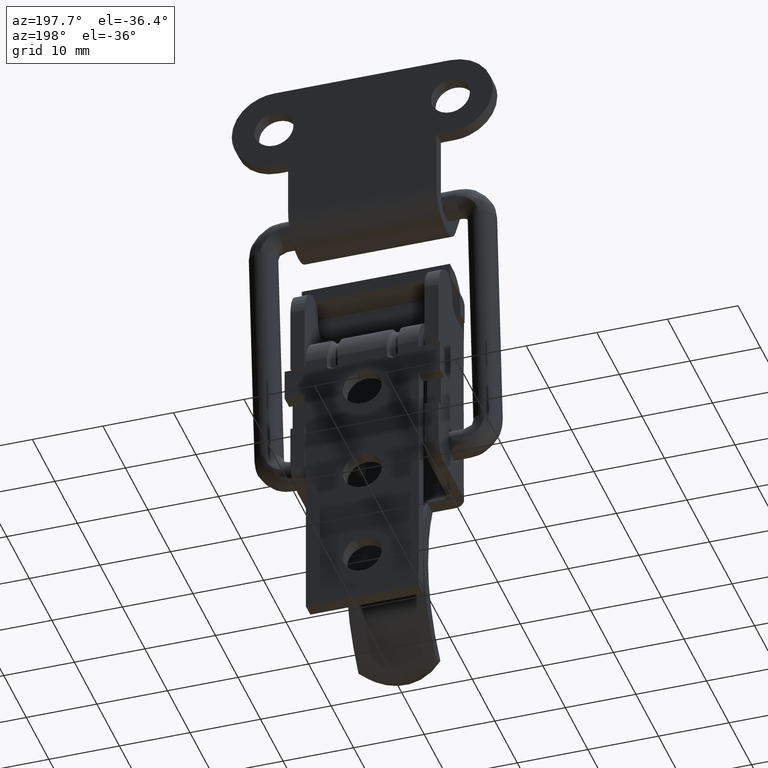
[diagram: clean part render]
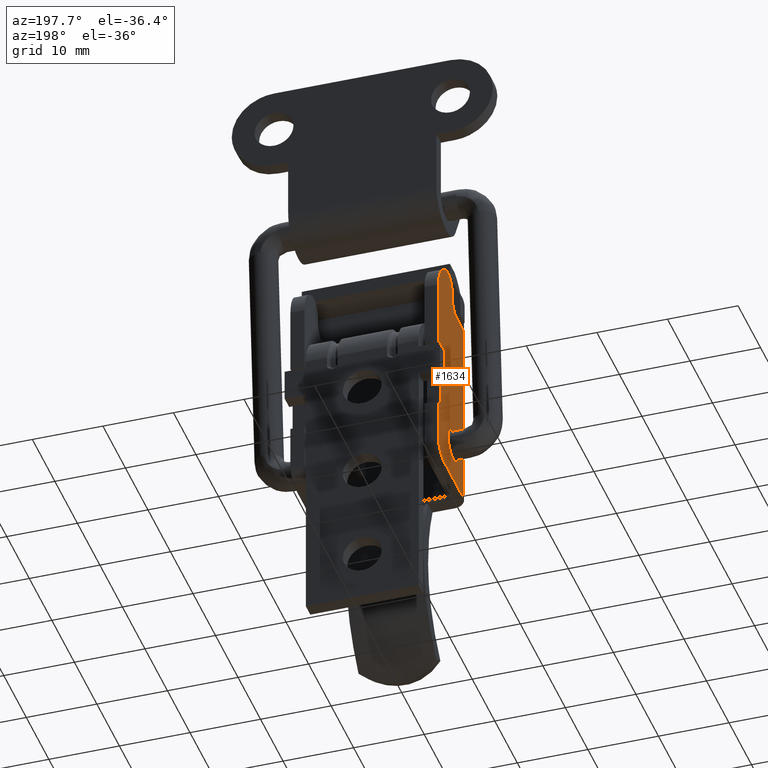
[diagram: same view with one face highlighted and labeled with its STEP entity id]
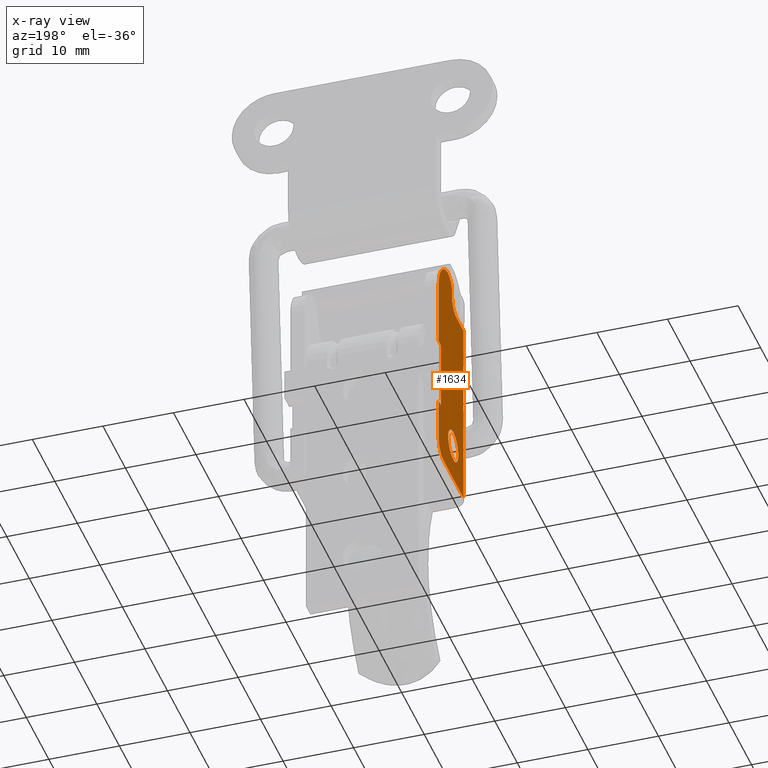
[diagram: x-ray of the same camera — body ghosted, the highlighted face saturated]
A machine part, auxiliary view. The second image highlights one B-rep face of the part: STEP entity #1634.
The next image is the same camera in x-ray: the body ghosted, the highlighted face saturated — about 0% of this face is hidden behind the body in this view.
In plain terms, the highlighted face is a freeform B-spline surface patch.
Its self-contained STEP definition (entity closure, byte-faithful):
#286=CARTESIAN_POINT('',(-10.500000000000000,-1.612464491416457,1.569221722156929));
#287=VERTEX_POINT('',#286);
#293=CARTESIAN_POINT('',(-10.500000000000000,0.0,2.250000000000000));
#294=VERTEX_POINT('',#293);
#295=CARTESIAN_POINT('',(-10.500000000000000,0.0,2.250000000000000));
#296=CARTESIAN_POINT('',(-10.499999999999989,-0.280943443741271,2.250276005783192));
#297=CARTESIAN_POINT('',(-10.500000000000041,-0.711434398399888,2.168244970531480));
#298=CARTESIAN_POINT('',(-10.499999999999959,-1.247147370743055,1.893063053322935));
#299=CARTESIAN_POINT('',(-10.500000000000020,-1.494942574765225,1.690029035212102));
#300=CARTESIAN_POINT('',(-10.500000000000000,-1.612464491416457,1.569221722156929));
#301=B_SPLINE_CURVE_WITH_KNOTS('',3,(#295,#296,#297,#298,#299,#300),.UNSPECIFIED.,.F.,.U.,(4,1,1,4),(0.000000014728185,0.842705320751062,1.292147612697767,1.797770625848777),.UNSPECIFIED.);
#302=EDGE_CURVE('',#294,#287,#301,.T.);
#304=CARTESIAN_POINT('',(-10.500000000000000,2.249999999999630,0.000001289926931));
#305=VERTEX_POINT('',#304);
#306=CARTESIAN_POINT('',(-10.500000000000000,2.249999999999630,0.000001289926931));
#307=CARTESIAN_POINT('',(-10.499999999999980,2.250128070219974,0.239321053924271));
#308=CARTESIAN_POINT('',(-10.500000000000011,2.193666916498253,0.588977730257543));
#309=CARTESIAN_POINT('',(-10.500000000000000,2.002904179086378,1.049399304943656));
#310=CARTESIAN_POINT('',(-10.500000000000011,1.775330380016229,1.408833048698913));
#311=CARTESIAN_POINT('',(-10.500000000000000,1.477843106253047,1.713698093594289));
#312=CARTESIAN_POINT('',(-10.500000000000000,1.130743468988455,1.958130530718445));
#313=CARTESIAN_POINT('',(-10.500000000000000,0.662577442743116,2.179636328253865));
#314=CARTESIAN_POINT('',(-10.500000000000000,0.257735403127001,2.250180356770545));
#315=CARTESIAN_POINT('',(-10.500000000000000,0.0,2.250000000000000));
#316=B_SPLINE_CURVE_WITH_KNOTS('',3,(#306,#307,#308,#309,#310,#311,#312,#313,#314,#315),.UNSPECIFIED.,.F.,.U.,(4,1,1,1,1,1,1,4),(0.000000034135996,0.717915547896062,1.049274105069932,1.491068358867785,1.988082434435846,2.319426126895500,2.761238766972024,3.534379697710593),.UNSPECIFIED.);
#317=EDGE_CURVE('',#305,#294,#316,.T.);
#319=CARTESIAN_POINT('',(-10.500000000000000,0.0,-2.250000000000000));
#320=VERTEX_POINT('',#319);
#321=CARTESIAN_POINT('',(-10.500000000000000,0.0,-2.250000000000000));
#322=CARTESIAN_POINT('',(-10.500000000000000,0.202491028136849,-2.250070875422188));
#323=CARTESIAN_POINT('',(-10.499999999999989,0.552190512302151,-2.202440575577275));
#324=CARTESIAN_POINT('',(-10.500000000000000,1.104485898640956,-1.989505203934882));
#325=CARTESIAN_POINT('',(-10.500000000000030,1.572877999900545,-1.650996820227692));
#326=CARTESIAN_POINT('',(-10.499999999999989,1.926520183917895,-1.197629774496289));
#327=CARTESIAN_POINT('',(-10.500000000000011,2.179602158275552,-0.662565249426456));
#328=CARTESIAN_POINT('',(-10.500000000000011,2.250203694470623,-0.257737685451538));
#329=CARTESIAN_POINT('',(-10.500000000000000,2.249999999999630,0.000001289926931));
#330=B_SPLINE_CURVE_WITH_KNOTS('',3,(#321,#322,#323,#324,#325,#326,#327,#328,#329),.UNSPECIFIED.,.F.,.U.,(4,1,1,1,1,1,4),(0.000000032367034,0.607461802057244,1.049274535222379,1.767190611289937,2.319427080565058,2.761239903347428,3.534381151795157),.UNSPECIFIED.);
#331=EDGE_CURVE('',#320,#305,#330,.T.);
#333=CARTESIAN_POINT('',(-10.500000000000000,-1.658874302697914,-1.520078120852334));
#334=VERTEX_POINT('',#333);
#335=CARTESIAN_POINT('',(-10.500000000000000,-1.658874302697914,-1.520078120852334));
#336=CARTESIAN_POINT('',(-10.500000000000020,-1.462165787309548,-1.735222203903474));
#337=CARTESIAN_POINT('',(-10.499999999999980,-1.095220321950313,-2.004780180642361));
#338=CARTESIAN_POINT('',(-10.500000000000000,-0.505170150167492,-2.211283677539399));
#339=CARTESIAN_POINT('',(-10.500000000000000,-0.174877364377822,-2.250037875574247));
#340=CARTESIAN_POINT('',(-10.500000000000000,0.0,-2.250000000000000));
#341=B_SPLINE_CURVE_WITH_KNOTS('',3,(#335,#336,#337,#338,#339,#340),.UNSPECIFIED.,.F.,.U.,(4,1,1,4),(0.000000017815219,0.874394006558779,1.340736820575054,1.865373008947691),.UNSPECIFIED.);
#342=EDGE_CURVE('',#334,#320,#341,.T.);
#427=CARTESIAN_POINT('',(-10.500000000000000,-2.249999999999630,-0.000001289926930));
#428=VERTEX_POINT('',#427);
#429=CARTESIAN_POINT('',(-10.500000000000000,-2.249999999999630,-0.000001289926930));
#430=CARTESIAN_POINT('',(-10.500000000000000,-2.250177042478921,-0.260799631148233));
#431=CARTESIAN_POINT('',(-10.499999999999980,-2.152171351709425,-0.816988947512937));
#432=CARTESIAN_POINT('',(-10.500000000000030,-1.858793900625547,-1.302350341662528));
#433=CARTESIAN_POINT('',(-10.500000000000000,-1.658874302697914,-1.520078120852334));
#434=B_SPLINE_CURVE_WITH_KNOTS('',3,(#429,#430,#431,#432,#433),.UNSPECIFIED.,.F.,.U.,(4,1,4),(0.000000018542169,0.782350318093636,1.669007198012965),.UNSPECIFIED.);
#435=EDGE_CURVE('',#428,#334,#434,.T.);
#437=CARTESIAN_POINT('',(-10.500000000000000,-1.612464491416457,1.569221722156929));
#438=CARTESIAN_POINT('',(-10.500000000000000,-1.776574276122206,1.400765864743282));
#439=CARTESIAN_POINT('',(-10.500000000000011,-1.998273037686593,1.086572919938978));
#440=CARTESIAN_POINT('',(-10.499999999999989,-2.204093824303022,0.542646815400109));
#441=CARTESIAN_POINT('',(-10.500000000000011,-2.250063755759653,0.198988117485240));
#442=CARTESIAN_POINT('',(-10.500000000000000,-2.249999999999630,-0.000001289926930));
#443=B_SPLINE_CURVE_WITH_KNOTS('',3,(#437,#438,#439,#440,#441,#442),.UNSPECIFIED.,.F.,.U.,(4,1,1,4),(0.000000022545370,0.705505113738807,1.139644898314187,1.736610914521784),.UNSPECIFIED.);
#444=EDGE_CURVE('',#287,#428,#443,.T.);
#1471=CARTESIAN_POINT('',(-10.500000000000000,-4.500000000000000,-5.500000000000000));
#1472=VERTEX_POINT('',#1471);
#1491=CARTESIAN_POINT('',(-10.500000000000000,-4.499999999999915,22.500000000000000));
#1492=VERTEX_POINT('',#1491);
#1498=CARTESIAN_POINT('',(-10.500000000000000,-4.500000000000000,-5.500000000000000));
#1499=CARTESIAN_POINT('',(-10.500000000000000,-4.499999999999915,22.500000000000000));
#1500=QUASI_UNIFORM_CURVE('',1,(#1498,#1499),.UNSPECIFIED.,.F.,.U.);
#1501=EDGE_CURVE('',#1472,#1492,#1500,.T.);
#1506=CARTESIAN_POINT('',(-10.500000000000000,-5.049449978679870,28.967731618388392));
#1507=CARTESIAN_POINT('',(-10.500000000000000,7.049450273722951,28.967731618388392));
#1508=CARTESIAN_POINT('',(-10.500000000000000,-5.049449978679870,-7.139758136266584));
#1509=CARTESIAN_POINT('',(-10.500000000000000,7.049450273722951,-7.139758136266584));
#1510=B_SPLINE_SURFACE_WITH_KNOTS('',1,1,((#1506,#1508),(#1507,#1509)),.UNSPECIFIED.,.F.,.F.,.U.,(2,2),(2,2),(0.0,12.098900252402821),(0.0,36.107489754654971),.UNSPECIFIED.);
#1511=CARTESIAN_POINT('',(-10.500000000000000,4.250000000000000,-5.500000000000000));
#1512=VERTEX_POINT('',#1511);
#1513=CARTESIAN_POINT('',(-10.500000000000000,4.250000000000000,-5.500000000000000));
#1514=CARTESIAN_POINT('',(-10.500000000000000,-4.500000000000000,-5.500000000000000));
#1515=QUASI_UNIFORM_CURVE('',1,(#1513,#1514),.UNSPECIFIED.,.F.,.U.);
#1516=EDGE_CURVE('',#1512,#1472,#1515,.T.);
#1517=ORIENTED_EDGE('',*,*,#1516,.T.);
#1518=ORIENTED_EDGE('',*,*,#1501,.T.);
#1519=CARTESIAN_POINT('',(-10.500000000000000,-1.499999999999914,22.500000000000000));
#1520=VERTEX_POINT('',#1519);
#1521=CARTESIAN_POINT('',(-10.500000000000000,-4.499999999999915,22.500000000000000));
#1522=CARTESIAN_POINT('',(-10.500000000000000,-1.499999999999914,22.500000000000000));
#1523=QUASI_UNIFORM_CURVE('',1,(#1521,#1522),.UNSPECIFIED.,.F.,.U.);
#1524=EDGE_CURVE('',#1492,#1520,#1523,.T.);
#1525=ORIENTED_EDGE('',*,*,#1524,.T.);
#1526=CARTESIAN_POINT('',(-10.500000000000000,0.500000000000085,24.500000000000000));
#1527=VERTEX_POINT('',#1526);
#1528=CARTESIAN_POINT('',(-10.500000000000000,-1.499999999999914,22.500000000000000));
#1529=CARTESIAN_POINT('',(-10.499999999999980,-1.270892861718397,22.499813484269598));
#1530=CARTESIAN_POINT('',(-10.500000000000020,-0.943781923223800,22.556885948040250));
#1531=CARTESIAN_POINT('',(-10.500000000000000,-0.478777069814686,22.762983932051430));
#1532=CARTESIAN_POINT('',(-10.500000000000000,-0.063844357334302,23.062764197477328));
#1533=CARTESIAN_POINT('',(-10.500000000000030,0.262584594158283,23.502860370687220));
#1534=CARTESIAN_POINT('',(-10.499999999999980,0.457715903565312,24.009165715193191));
#1535=CARTESIAN_POINT('',(-10.499999999999980,0.500061317879775,24.320008279970221));
#1536=CARTESIAN_POINT('',(-10.500000000000000,0.500000000000085,24.500000000000000));
#1537=B_SPLINE_CURVE_WITH_KNOTS('',3,(#1528,#1529,#1530,#1531,#1532,#1533,#1534,#1535,#1536),.UNSPECIFIED.,.F.,.U.,(4,1,1,1,1,1,4),(0.000000080939438,0.687236437396613,0.981773463078720,1.521755501551101,2.208983185125719,2.601697787950876,3.141671488671573),.UNSPECIFIED.);
#1538=EDGE_CURVE('',#1520,#1527,#1537,.T.);
#1539=ORIENTED_EDGE('',*,*,#1538,.T.);
#1540=CARTESIAN_POINT('',(-10.500000000000000,0.500000000000000,25.328427124746099));
#1541=VERTEX_POINT('',#1540);
#1542=CARTESIAN_POINT('',(-10.500000000000000,0.500000000000085,24.500000000000000));
#1543=CARTESIAN_POINT('',(-10.500000000000000,0.500000000000000,25.328427124746099));
#1544=QUASI_UNIFORM_CURVE('',1,(#1542,#1543),.UNSPECIFIED.,.F.,.U.);
#1545=EDGE_CURVE('',#1527,#1541,#1544,.T.);
#1546=ORIENTED_EDGE('',*,*,#1545,.T.);
#1547=CARTESIAN_POINT('',(-10.500000000000000,3.166666666666610,27.214045207910250));
#1548=VERTEX_POINT('',#1547);
#1549=CARTESIAN_POINT('',(-10.500000000000000,3.166666666666610,27.214045207910250));
#1550=CARTESIAN_POINT('',(-10.500000000000020,2.941530619760979,27.293831630045428));
#1551=CARTESIAN_POINT('',(-10.500000000000000,2.562227895174084,27.355032122758491));
#1552=CARTESIAN_POINT('',(-10.500000000000000,2.075632929949803,27.294841081906469));
#1553=CARTESIAN_POINT('',(-10.500000000000011,1.714233183109962,27.179281773585750));
#1554=CARTESIAN_POINT('',(-10.500000000000060,1.352257793881607,26.986901911500691));
#1555=CARTESIAN_POINT('',(-10.499999999999829,1.056229472311683,26.731146819482500));
#1556=CARTESIAN_POINT('',(-10.500000000000240,0.773353255493689,26.369919098471978));
#1557=CARTESIAN_POINT('',(-10.499999999999840,0.559882255443836,25.925475086491439));
#1558=CARTESIAN_POINT('',(-10.500000000000060,0.499920679758015,25.527456008050379));
#1559=CARTESIAN_POINT('',(-10.500000000000000,0.500000000000000,25.328427124746099));
#1560=B_SPLINE_CURVE_WITH_KNOTS('',3,(#1549,#1550,#1551,#1552,#1553,#1554,#1555,#1556,#1557,#1558,#1559),.UNSPECIFIED.,.F.,.U.,(4,1,1,1,1,1,1,1,4),(0.000000195608352,0.716490655947832,1.134457120227771,1.462864752349851,1.850961875713380,2.358438503980059,2.627137773563607,3.224226741635083,3.821301945282728),.UNSPECIFIED.);
#1561=EDGE_CURVE('',#1548,#1541,#1560,.T.);
#1562=ORIENTED_EDGE('',*,*,#1561,.F.);
#1563=CARTESIAN_POINT('',(-10.500000000000000,6.500000000000090,22.500000000000000));
#1564=VERTEX_POINT('',#1563);
#1565=CARTESIAN_POINT('',(-10.500000000000000,6.500000000000090,22.500000000000000));
#1566=CARTESIAN_POINT('',(-10.500000000000030,6.500261043553976,22.996909524271860));
#1567=CARTESIAN_POINT('',(-10.499999999999950,6.389132012495875,23.734049822722621));
#1568=CARTESIAN_POINT('',(-10.500000000000041,6.022752042451528,24.677852107309320));
#1569=CARTESIAN_POINT('',(-10.499999999999890,5.612314833611422,25.387934148882941));
#1570=CARTESIAN_POINT('',(-10.500000000000060,5.095579618272644,26.004862367152121));
#1571=CARTESIAN_POINT('',(-10.499999999999959,4.307069940466577,26.689413102756010));
#1572=CARTESIAN_POINT('',(-10.500000000000030,3.650370886714098,27.043335947533389));
#1573=CARTESIAN_POINT('',(-10.500000000000000,3.166666666666610,27.214045207910250));
#1574=B_SPLINE_CURVE_WITH_KNOTS('',3,(#1565,#1566,#1567,#1568,#1569,#1570,#1571,#1572,#1573),.UNSPECIFIED.,.F.,.U.,(4,1,1,1,1,1,4),(0.000000052773063,1.490621110861728,2.211899895315314,3.029351157674913,3.942925029411726,4.616115615784612,6.154820803455634),.UNSPECIFIED.);
#1575=EDGE_CURVE('',#1564,#1548,#1574,.T.);
#1576=ORIENTED_EDGE('',*,*,#1575,.F.);
#1577=CARTESIAN_POINT('',(-10.500000000000000,6.500000000000090,13.0));
#1578=VERTEX_POINT('',#1577);
#1579=CARTESIAN_POINT('',(-10.500000000000000,6.500000000000090,22.500000000000000));
#1580=CARTESIAN_POINT('',(-10.500000000000000,6.500000000000090,13.0));
#1581=QUASI_UNIFORM_CURVE('',1,(#1579,#1580),.UNSPECIFIED.,.F.,.U.);
#1582=EDGE_CURVE('',#1564,#1578,#1581,.T.);
#1583=ORIENTED_EDGE('',*,*,#1582,.T.);
#1584=CARTESIAN_POINT('',(-10.500000000000000,5.500000000000090,13.0));
#1585=VERTEX_POINT('',#1584);
#1586=CARTESIAN_POINT('',(-10.500000000000000,6.500000000000090,13.0));
#1587=CARTESIAN_POINT('',(-10.500000000000000,5.500000000000090,13.0));
#1588=QUASI_UNIFORM_CURVE('',1,(#1586,#1587),.UNSPECIFIED.,.F.,.U.);
#1589=EDGE_CURVE('',#1578,#1585,#1588,.T.);
#1590=ORIENTED_EDGE('',*,*,#1589,.T.);
#1591=CARTESIAN_POINT('',(-10.500000000000000,5.500000000000090,3.0));
#1592=VERTEX_POINT('',#1591);
#1593=CARTESIAN_POINT('',(-10.500000000000000,5.500000000000090,13.0));
#1594=CARTESIAN_POINT('',(-10.500000000000000,5.500000000000090,3.0));
#1595=QUASI_UNIFORM_CURVE('',1,(#1593,#1594),.UNSPECIFIED.,.F.,.U.);
#1596=EDGE_CURVE('',#1585,#1592,#1595,.T.);
#1597=ORIENTED_EDGE('',*,*,#1596,.T.);
#1598=CARTESIAN_POINT('',(-10.500000000000000,6.500000000000090,3.0));
#1599=VERTEX_POINT('',#1598);
#1600=CARTESIAN_POINT('',(-10.500000000000000,5.500000000000090,3.0));
#1601=CARTESIAN_POINT('',(-10.500000000000000,6.500000000000090,3.0));
#1602=QUASI_UNIFORM_CURVE('',1,(#1600,#1601),.UNSPECIFIED.,.F.,.U.);
#1603=EDGE_CURVE('',#1592,#1599,#1602,.T.);
#1604=ORIENTED_EDGE('',*,*,#1603,.T.);
#1605=CARTESIAN_POINT('',(-10.500000000000000,6.500000000000090,-3.250000000000000));
#1606=VERTEX_POINT('',#1605);
#1607=CARTESIAN_POINT('',(-10.500000000000000,6.500000000000090,3.0));
#1608=CARTESIAN_POINT('',(-10.500000000000000,6.500000000000090,-3.250000000000000));
#1609=QUASI_UNIFORM_CURVE('',1,(#1607,#1608),.UNSPECIFIED.,.F.,.U.);
#1610=EDGE_CURVE('',#1599,#1606,#1609,.T.);
#1611=ORIENTED_EDGE('',*,*,#1610,.T.);
#1612=CARTESIAN_POINT('',(-10.500000000000000,4.250000000000000,-5.500000000000000));
#1613=CARTESIAN_POINT('',(-10.499999999999989,4.489319120229363,-5.500143121318522));
#1614=CARTESIAN_POINT('',(-10.500000000000030,4.875786618399886,-5.437711700405812));
#1615=CARTESIAN_POINT('',(-10.499999999999970,5.416924913265667,-5.197854730762077));
#1616=CARTESIAN_POINT('',(-10.500000000000069,5.816073224140635,-4.894185695664960));
#1617=CARTESIAN_POINT('',(-10.499999999999890,6.132839902996550,-4.508085189555314));
#1618=CARTESIAN_POINT('',(-10.500000000000179,6.412007156430438,-3.986118624386943));
#1619=CARTESIAN_POINT('',(-10.499999999999870,6.500282857425325,-3.544576678997389));
#1620=CARTESIAN_POINT('',(-10.500000000000000,6.500000000000090,-3.250000000000000));
#1621=B_SPLINE_CURVE_WITH_KNOTS('',3,(#1612,#1613,#1614,#1615,#1616,#1617,#1618,#1619,#1620),.UNSPECIFIED.,.F.,.U.,(4,1,1,1,1,1,4),(0.000000033251026,0.717915694865637,1.159724760171959,1.767190229002034,2.208976946937666,2.650785335761975,3.534380424753132),.UNSPECIFIED.);
#1622=EDGE_CURVE('',#1512,#1606,#1621,.T.);
#1623=ORIENTED_EDGE('',*,*,#1622,.F.);
#1624=EDGE_LOOP('',(#1517,#1518,#1525,#1539,#1546,#1562,#1576,#1583,#1590,#1597,#1604,#1611,#1623));
#1625=FACE_OUTER_BOUND('',#1624,.T.);
#1626=ORIENTED_EDGE('',*,*,#331,.T.);
#1627=ORIENTED_EDGE('',*,*,#317,.T.);
#1628=ORIENTED_EDGE('',*,*,#302,.T.);
#1629=ORIENTED_EDGE('',*,*,#444,.T.);
#1630=ORIENTED_EDGE('',*,*,#435,.T.);
#1631=ORIENTED_EDGE('',*,*,#342,.T.);
#1632=EDGE_LOOP('',(#1626,#1627,#1628,#1629,#1630,#1631));
#1633=FACE_BOUND('',#1632,.T.);
#1634=ADVANCED_FACE('',(#1625,#1633),#1510,.T.);